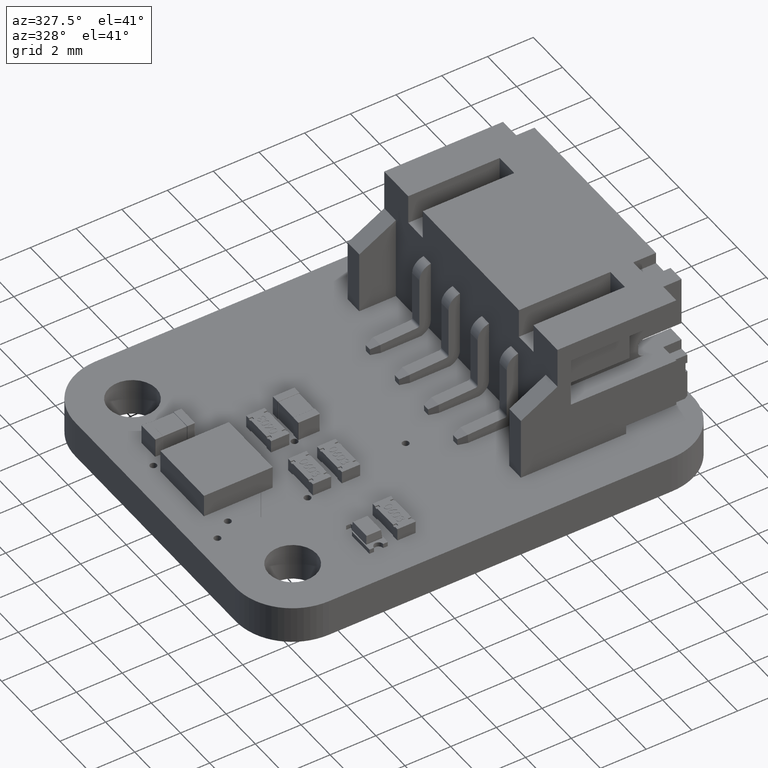
[diagram: clean part render]
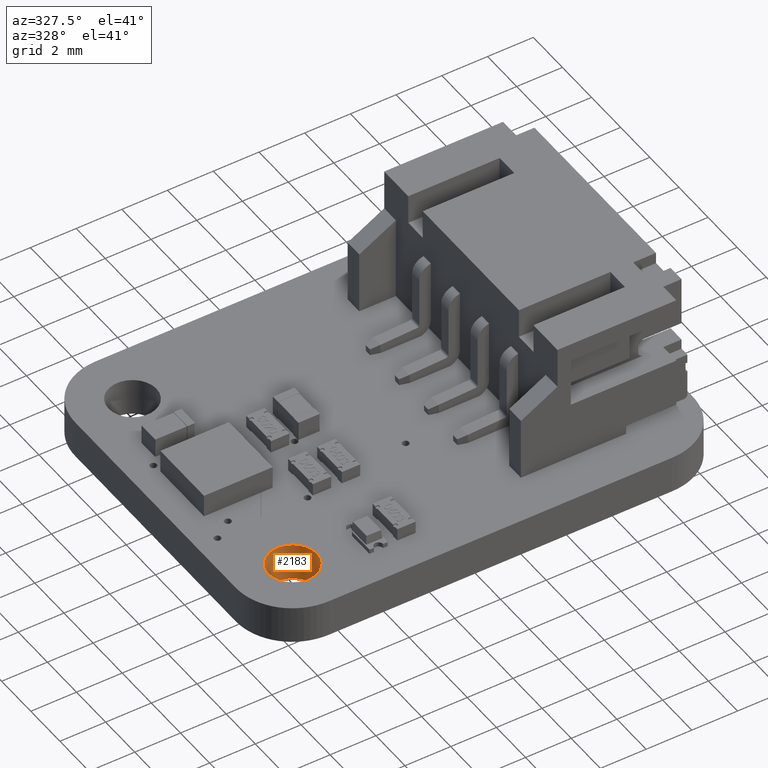
[diagram: same view with one face highlighted and labeled with its STEP entity id]
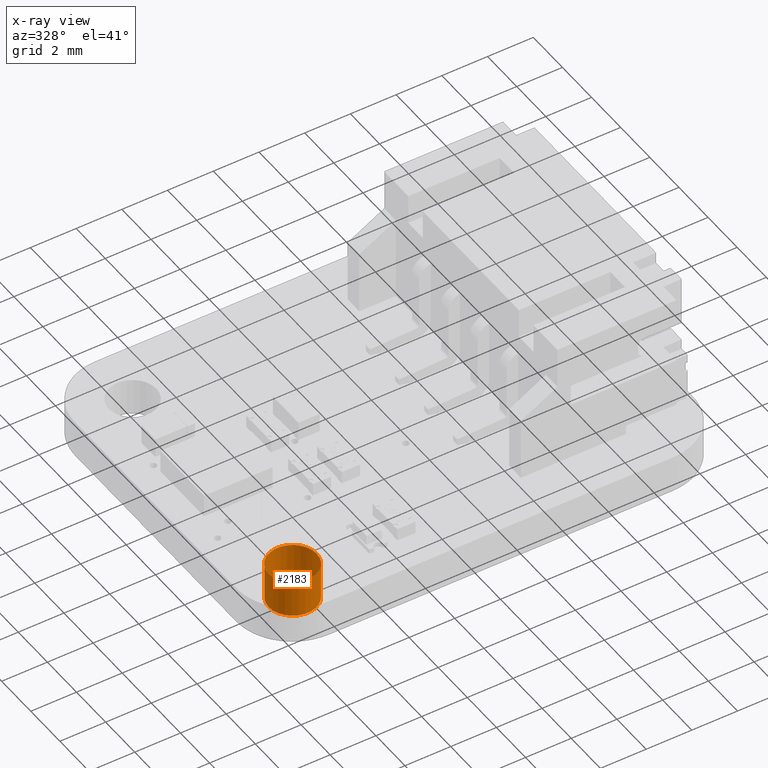
[diagram: x-ray of the same camera — body ghosted, the highlighted face saturated]
A machine part, auxiliary view. The second image highlights one B-rep face of the part: STEP entity #2183.
The next image is the same camera in x-ray: the body ghosted, the highlighted face saturated — about 0% of this face is hidden behind the body in this view.
In plain terms, the highlighted cylindrical surface (bore or boss wall) has radius 1.05 mm, axis along (-0, -0, -1).
Its self-contained STEP definition (entity closure, byte-faithful):
#2183 = ADVANCED_FACE('',(#2184),#2211,.F.);
#2184 = FACE_BOUND('',#2185,.T.);
#2185 = EDGE_LOOP('',(#2186,#2196,#2203,#2204));
#2186 = ORIENTED_EDGE('',*,*,#2187,.T.);
#2187 = EDGE_CURVE('',#2188,#2190,#2192,.T.);
#2188 = VERTEX_POINT('',#2189);
#2189 = CARTESIAN_POINT('',(3.55,-13.5,-0.82));
#2190 = VERTEX_POINT('',#2191);
#2191 = CARTESIAN_POINT('',(3.55,-13.5,0.82));
#2192 = LINE('',#2193,#2194);
#2193 = CARTESIAN_POINT('',(3.55,-13.5,-0.82));
#2194 = VECTOR('',#2195,1.);
#2195 = DIRECTION('',(0.,0.,1.));
#2196 = ORIENTED_EDGE('',*,*,#2197,.T.);
#2197 = EDGE_CURVE('',#2190,#2190,#2198,.T.);
#2198 = CIRCLE('',#2199,1.05);
#2199 = AXIS2_PLACEMENT_3D('',#2200,#2201,#2202);
#2200 = CARTESIAN_POINT('',(2.5,-13.5,0.82));
#2201 = DIRECTION('',(0.,0.,1.));
#2202 = DIRECTION('',(1.,0.,-0.));
#2203 = ORIENTED_EDGE('',*,*,#2187,.F.);
#2204 = ORIENTED_EDGE('',*,*,#2205,.F.);
#2205 = EDGE_CURVE('',#2188,#2188,#2206,.T.);
#2206 = CIRCLE('',#2207,1.05);
#2207 = AXIS2_PLACEMENT_3D('',#2208,#2209,#2210);
#2208 = CARTESIAN_POINT('',(2.5,-13.5,-0.82));
#2209 = DIRECTION('',(0.,0.,1.));
#2210 = DIRECTION('',(1.,0.,-0.));
#2211 = CYLINDRICAL_SURFACE('',#2212,1.05);
#2212 = AXIS2_PLACEMENT_3D('',#2213,#2214,#2215);
#2213 = CARTESIAN_POINT('',(2.5,-13.5,-0.82));
#2214 = DIRECTION('',(-0.,-0.,-1.));
#2215 = DIRECTION('',(1.,0.,-0.));